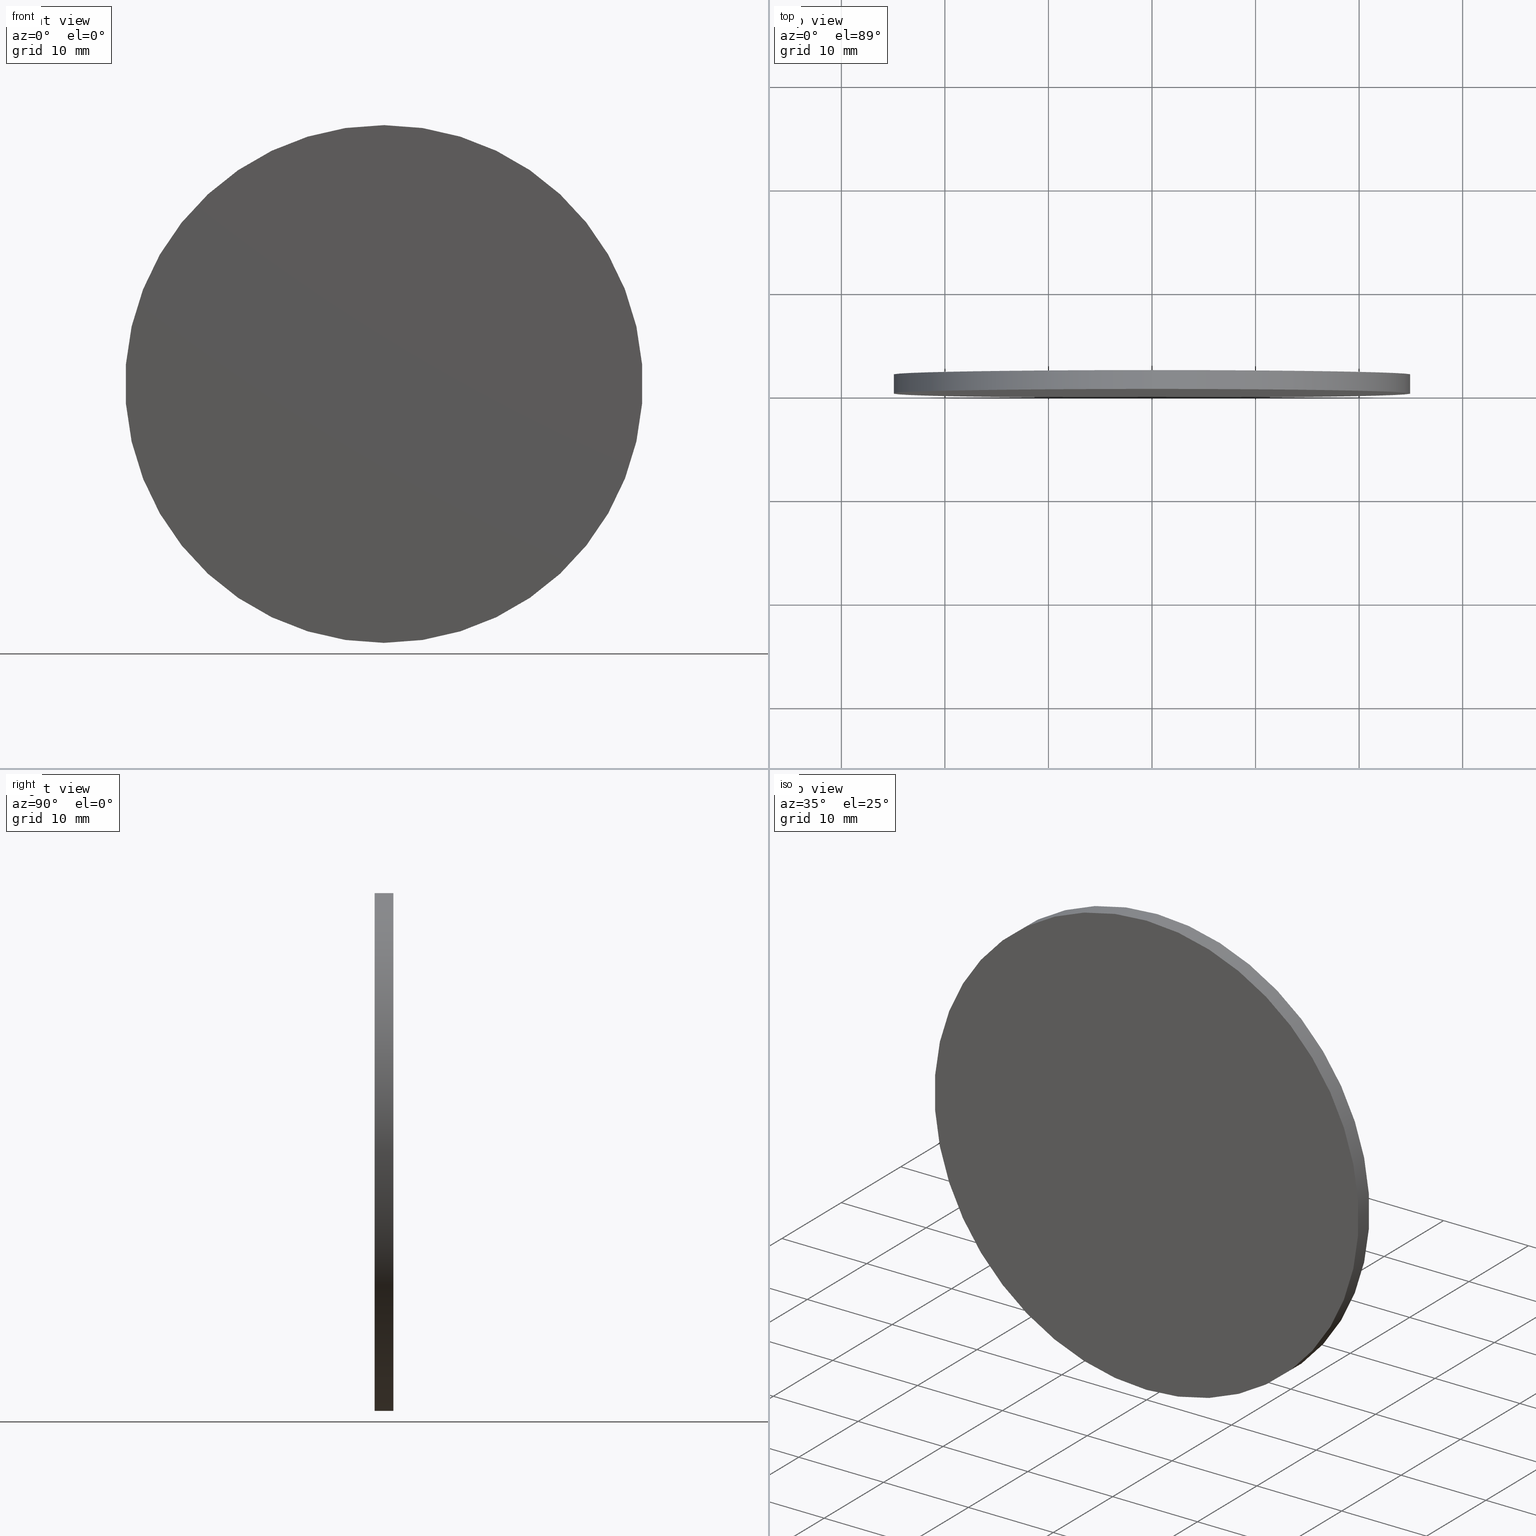
[diagram: canonical four-view strip — front | top / right | iso, engineering-drawing reading convention]
A machine part, canonical four-view strip (front | top / right | iso — engineering-drawing reading convention). The complete STEP part file that produces these views, byte-faithful:
ISO-10303-21;
HEADER;
FILE_DESCRIPTION (( 'STEP AP214' ),
    '1' );
FILE_NAME ('248602.STEP',
    '2019-08-06T05:32:40',
    ( 'user' ),
    ( '΢���й�' ),
    'SwSTEP 2.0',
    'SolidWorks 2016',
    '' );
FILE_SCHEMA (( 'AUTOMOTIVE_DESIGN' ));
ENDSEC;

DATA;
#1 = LINE ( 'NONE', #21, #127 ) ;
#2 = ORIENTED_EDGE ( 'NONE', *, *, #78, .T. ) ;
#3 = MECHANICAL_DESIGN_GEOMETRIC_PRESENTATION_REPRESENTATION (  '', ( #22 ), #9 ) ;
#4 = EDGE_CURVE ( 'NONE', #65, #57, #15, .T. ) ;
#5 = ADVANCED_BREP_SHAPE_REPRESENTATION ( '248602', ( #34, #24 ), #110 ) ;
#6 = AXIS2_PLACEMENT_3D ( 'NONE', #13, #79, #114 ) ;
#7 = EDGE_LOOP ( 'NONE', ( #40, #19, #84, #116 ) ) ;
#8 =( LENGTH_UNIT ( ) NAMED_UNIT ( * ) SI_UNIT ( .MILLI., .METRE. ) );
#9 =( GEOMETRIC_REPRESENTATION_CONTEXT ( 3 ) GLOBAL_UNCERTAINTY_ASSIGNED_CONTEXT ( ( #53 ) ) GLOBAL_UNIT_ASSIGNED_CONTEXT ( ( #8, #119, #82 ) ) REPRESENTATION_CONTEXT ( 'NONE', 'WORKASPACE' ) );
#10 = DIRECTION ( 'NONE',  ( -0.0000000000000000000, -1.000000000000000000, -0.0000000000000000000 ) ) ;
#11 = FILL_AREA_STYLE_COLOUR ( '', #66 ) ;
#12 = CARTESIAN_POINT ( 'NONE',  ( 0.0000000000000000000, 1.820000000000000100, 0.0000000000000000000 ) ) ;
#13 = CARTESIAN_POINT ( 'NONE',  ( 0.0000000000000000000, 1.820000000000000100, 0.0000000000000000000 ) ) ;
#14 = DIRECTION ( 'NONE',  ( -0.0000000000000000000, -1.000000000000000000, -0.0000000000000000000 ) ) ;
#15 = LINE ( 'NONE', #71, #88 ) ;
#16 = PRESENTATION_LAYER_ASSIGNMENT (  '', '', ( #22 ) ) ;
#17 = EDGE_LOOP ( 'NONE', ( #39, #29, #43, #133 ) ) ;
#18 = DIRECTION ( 'NONE',  ( 0.0000000000000000000, 1.000000000000000000, 0.0000000000000000000 ) ) ;
#19 = ORIENTED_EDGE ( 'NONE', *, *, #129, .F. ) ;
#20 = AXIS2_PLACEMENT_3D ( 'NONE', #45, #44, #54 ) ;
#21 = CARTESIAN_POINT ( 'NONE',  ( 3.061616997868383000E-015, 1.820000000000000100, 25.00000000000000000 ) ) ;
#22 = STYLED_ITEM ( 'NONE', ( #117 ), #5 ) ;
#23 = PRODUCT_RELATED_PRODUCT_CATEGORY ( 'part', '', ( #80 ) ) ;
#24 = AXIS2_PLACEMENT_3D ( 'NONE', #91, #28, #31 ) ;
#25 = EDGE_LOOP ( 'NONE', ( #112, #56 ) ) ;
#26 = AXIS2_PLACEMENT_3D ( 'NONE', #137, #97, #86 ) ;
#27 = CARTESIAN_POINT ( 'NONE',  ( 0.0000000000000000000, 0.0000000000000000000, 0.0000000000000000000 ) ) ;
#28 = DIRECTION ( 'NONE',  ( 0.0000000000000000000, 0.0000000000000000000, 1.000000000000000000 ) ) ;
#29 = ORIENTED_EDGE ( 'NONE', *, *, #101, .T. ) ;
#30 = ADVANCED_FACE ( 'NONE', ( #70 ), #122, .T. ) ;
#31 = DIRECTION ( 'NONE',  ( 1.000000000000000000, 0.0000000000000000000, 0.0000000000000000000 ) ) ;
#32 = DIRECTION ( 'NONE',  ( 0.0000000000000000000, 1.000000000000000000, 0.0000000000000000000 ) ) ;
#33 = CYLINDRICAL_SURFACE ( 'NONE', #96, 25.00000000000000000 ) ;
#34 = MANIFOLD_SOLID_BREP ( '͹̨-����1', #98 ) ;
#35 = FACE_OUTER_BOUND ( 'NONE', #7, .T. ) ;
#36 = PRODUCT_DEFINITION ( 'δ֪', '', #99, #94 ) ;
#37 = DIRECTION ( 'NONE',  ( 0.0000000000000000000, 0.0000000000000000000, -1.000000000000000000 ) ) ;
#38 = AXIS2_PLACEMENT_3D ( 'NONE', #93, #74, #92 ) ;
#39 = ORIENTED_EDGE ( 'NONE', *, *, #78, .F. ) ;
#40 = ORIENTED_EDGE ( 'NONE', *, *, #101, .F. ) ;
#41 = SURFACE_STYLE_USAGE ( .BOTH. , #107 ) ;
#42 = STYLED_ITEM ( 'NONE', ( #73 ), #34 ) ;
#43 = ORIENTED_EDGE ( 'NONE', *, *, #68, .T. ) ;
#44 = DIRECTION ( 'NONE',  ( 0.0000000000000000000, 1.000000000000000000, 0.0000000000000000000 ) ) ;
#45 = CARTESIAN_POINT ( 'NONE',  ( 0.0000000000000000000, 1.820000000000000100, 0.0000000000000000000 ) ) ;
#46 = SHAPE_DEFINITION_REPRESENTATION ( #120, #5 ) ;
#47 = PRODUCT_CONTEXT ( 'NONE', #113, 'mechanical' ) ;
#48 = FILL_AREA_STYLE ('',( #61 ) ) ;
#49 = FACE_OUTER_BOUND ( 'NONE', #83, .T. ) ;
#50 = FACE_OUTER_BOUND ( 'NONE', #25, .T. ) ;
#51 = CARTESIAN_POINT ( 'NONE',  ( 3.061616997868383000E-015, 1.820000000000000100, 25.00000000000000000 ) ) ;
#52 = DIRECTION ( 'NONE',  ( -0.0000000000000000000, -1.000000000000000000, -0.0000000000000000000 ) ) ;
#53 = UNCERTAINTY_MEASURE_WITH_UNIT (LENGTH_MEASURE( 1.000000000000000100E-005 ), #8, 'distance_accuracy_value', 'NONE');
#54 = DIRECTION ( 'NONE',  ( 0.0000000000000000000, 0.0000000000000000000, 1.000000000000000000 ) ) ;
#55 =( GEOMETRIC_REPRESENTATION_CONTEXT ( 3 ) GLOBAL_UNCERTAINTY_ASSIGNED_CONTEXT ( ( #62 ) ) GLOBAL_UNIT_ASSIGNED_CONTEXT ( ( #75, #125, #106 ) ) REPRESENTATION_CONTEXT ( 'NONE', 'WORKASPACE' ) );
#56 = ORIENTED_EDGE ( 'NONE', *, *, #68, .F. ) ;
#57 = VERTEX_POINT ( 'NONE', #72 ) ;
#58 = SURFACE_STYLE_FILL_AREA ( #118 ) ;
#59 = CARTESIAN_POINT ( 'NONE',  ( 0.0000000000000000000, 1.820000000000000100, 0.0000000000000000000 ) ) ;
#60 = DIRECTION ( 'NONE',  ( -0.0000000000000000000, -1.000000000000000000, -0.0000000000000000000 ) ) ;
#61 = FILL_AREA_STYLE_COLOUR ( '', #105 ) ;
#62 = UNCERTAINTY_MEASURE_WITH_UNIT (LENGTH_MEASURE( 1.000000000000000100E-005 ), #75, 'distance_accuracy_value', 'NONE');
#63 = CARTESIAN_POINT ( 'NONE',  ( 0.0000000000000000000, 0.0000000000000000000, 0.0000000000000000000 ) ) ;
#64 = CARTESIAN_POINT ( 'NONE',  ( 3.061616997868383000E-015, 0.0000000000000000000, 25.00000000000000000 ) ) ;
#65 = VERTEX_POINT ( 'NONE', #131 ) ;
#66 = COLOUR_RGB ( '',1.000000000000000000, 1.000000000000000000, 1.000000000000000000 ) ;
#67 = AXIS2_PLACEMENT_3D ( 'NONE', #63, #18, #81 ) ;
#68 = EDGE_CURVE ( 'NONE', #128, #57, #136, .T. ) ;
#69 = EDGE_CURVE ( 'NONE', #57, #128, #87, .T. ) ;
#70 = FACE_OUTER_BOUND ( 'NONE', #17, .T. ) ;
#71 = CARTESIAN_POINT ( 'NONE',  ( 0.0000000000000000000, 1.820000000000000100, -25.00000000000000000 ) ) ;
#72 = CARTESIAN_POINT ( 'NONE',  ( 0.0000000000000000000, 0.0000000000000000000, -25.00000000000000000 ) ) ;
#73 = PRESENTATION_STYLE_ASSIGNMENT (( #41 ) ) ;
#74 = DIRECTION ( 'NONE',  ( 0.0000000000000000000, 1.000000000000000000, 0.0000000000000000000 ) ) ;
#75 =( LENGTH_UNIT ( ) NAMED_UNIT ( * ) SI_UNIT ( .MILLI., .METRE. ) );
#76 = ADVANCED_FACE ( 'NONE', ( #49 ), #111, .T. ) ;
#77 = PLANE ( 'NONE',  #67 ) ;
#78 = EDGE_CURVE ( 'NONE', #135, #65, #104, .T. ) ;
#79 = DIRECTION ( 'NONE',  ( 0.0000000000000000000, 1.000000000000000000, 0.0000000000000000000 ) ) ;
#80 = PRODUCT ( '248602', '248602', '', ( #47 ) ) ;
#81 = DIRECTION ( 'NONE',  ( 0.0000000000000000000, -0.0000000000000000000, 1.000000000000000000 ) ) ;
#82 =( NAMED_UNIT ( * ) SI_UNIT ( $, .STERADIAN. ) SOLID_ANGLE_UNIT ( ) );
#83 = EDGE_LOOP ( 'NONE', ( #109, #2 ) ) ;
#84 = ORIENTED_EDGE ( 'NONE', *, *, #4, .T. ) ;
#85 =( LENGTH_UNIT ( ) NAMED_UNIT ( * ) SI_UNIT ( .MILLI., .METRE. ) );
#86 = DIRECTION ( 'NONE',  ( 0.0000000000000000000, 0.0000000000000000000, 1.000000000000000000 ) ) ;
#87 = CIRCLE ( 'NONE', #89, 25.00000000000000000 ) ;
#88 = VECTOR ( 'NONE', #52, 1000.000000000000000 ) ;
#89 = AXIS2_PLACEMENT_3D ( 'NONE', #27, #32, #100 ) ;
#90 = CIRCLE ( 'NONE', #38, 25.00000000000000000 ) ;
#91 = CARTESIAN_POINT ( 'NONE',  ( 0.0000000000000000000, 0.0000000000000000000, 0.0000000000000000000 ) ) ;
#92 = DIRECTION ( 'NONE',  ( 0.0000000000000000000, 0.0000000000000000000, 1.000000000000000000 ) ) ;
#93 = CARTESIAN_POINT ( 'NONE',  ( 0.0000000000000000000, 1.820000000000000100, 0.0000000000000000000 ) ) ;
#94 = PRODUCT_DEFINITION_CONTEXT ( 'detailed design', #130, 'design' ) ;
#95 = APPLICATION_PROTOCOL_DEFINITION ( 'draft international standard', 'automotive_design', 1998, #130 ) ;
#96 = AXIS2_PLACEMENT_3D ( 'NONE', #59, #60, #140 ) ;
#97 = DIRECTION ( 'NONE',  ( 0.0000000000000000000, 1.000000000000000000, 0.0000000000000000000 ) ) ;
#98 = CLOSED_SHELL ( 'NONE', ( #30, #115, #76, #123 ) ) ;
#99 = PRODUCT_DEFINITION_FORMATION_WITH_SPECIFIED_SOURCE ( '�κ�', '', #80, .NOT_KNOWN. ) ;
#100 = DIRECTION ( 'NONE',  ( 0.0000000000000000000, 0.0000000000000000000, 1.000000000000000000 ) ) ;
#101 = EDGE_CURVE ( 'NONE', #135, #128, #1, .T. ) ;
#102 =( NAMED_UNIT ( * ) PLANE_ANGLE_UNIT ( ) SI_UNIT ( $, .RADIAN. ) );
#103 =( NAMED_UNIT ( * ) SI_UNIT ( $, .STERADIAN. ) SOLID_ANGLE_UNIT ( ) );
#104 = CIRCLE ( 'NONE', #20, 25.00000000000000000 ) ;
#105 = COLOUR_RGB ( '',1.000000000000000000, 1.000000000000000000, 1.000000000000000000 ) ;
#106 =( NAMED_UNIT ( * ) SI_UNIT ( $, .STERADIAN. ) SOLID_ANGLE_UNIT ( ) );
#107 = SURFACE_SIDE_STYLE ('',( #139 ) ) ;
#108 = PRESENTATION_LAYER_ASSIGNMENT (  '', '', ( #42 ) ) ;
#109 = ORIENTED_EDGE ( 'NONE', *, *, #129, .T. ) ;
#110 =( GEOMETRIC_REPRESENTATION_CONTEXT ( 3 ) GLOBAL_UNCERTAINTY_ASSIGNED_CONTEXT ( ( #121 ) ) GLOBAL_UNIT_ASSIGNED_CONTEXT ( ( #85, #102, #103 ) ) REPRESENTATION_CONTEXT ( 'NONE', 'WORKASPACE' ) );
#111 = PLANE ( 'NONE',  #6 ) ;
#112 = ORIENTED_EDGE ( 'NONE', *, *, #69, .F. ) ;
#113 = APPLICATION_CONTEXT ( 'automotive_design' ) ;
#114 = DIRECTION ( 'NONE',  ( 0.0000000000000000000, -0.0000000000000000000, 1.000000000000000000 ) ) ;
#115 = ADVANCED_FACE ( 'NONE', ( #35 ), #33, .T. ) ;
#116 = ORIENTED_EDGE ( 'NONE', *, *, #69, .T. ) ;
#117 = PRESENTATION_STYLE_ASSIGNMENT (( #126 ) ) ;
#118 = FILL_AREA_STYLE ('',( #11 ) ) ;
#119 =( NAMED_UNIT ( * ) PLANE_ANGLE_UNIT ( ) SI_UNIT ( $, .RADIAN. ) );
#120 = PRODUCT_DEFINITION_SHAPE ( 'NONE', 'NONE',  #36 ) ;
#121 = UNCERTAINTY_MEASURE_WITH_UNIT (LENGTH_MEASURE( 1.000000000000000100E-005 ), #85, 'distance_accuracy_value', 'NONE');
#122 = CYLINDRICAL_SURFACE ( 'NONE', #134, 25.00000000000000000 ) ;
#123 = ADVANCED_FACE ( 'NONE', ( #50 ), #77, .F. ) ;
#124 = MECHANICAL_DESIGN_GEOMETRIC_PRESENTATION_REPRESENTATION (  '', ( #42 ), #55 ) ;
#125 =( NAMED_UNIT ( * ) PLANE_ANGLE_UNIT ( ) SI_UNIT ( $, .RADIAN. ) );
#126 = SURFACE_STYLE_USAGE ( .BOTH. , #132 ) ;
#127 = VECTOR ( 'NONE', #10, 1000.000000000000000 ) ;
#128 = VERTEX_POINT ( 'NONE', #64 ) ;
#129 = EDGE_CURVE ( 'NONE', #65, #135, #90, .T. ) ;
#130 = APPLICATION_CONTEXT ( 'automotive_design' ) ;
#131 = CARTESIAN_POINT ( 'NONE',  ( 0.0000000000000000000, 1.820000000000000100, -25.00000000000000000 ) ) ;
#132 = SURFACE_SIDE_STYLE ('',( #58 ) ) ;
#133 = ORIENTED_EDGE ( 'NONE', *, *, #4, .F. ) ;
#134 = AXIS2_PLACEMENT_3D ( 'NONE', #12, #14, #37 ) ;
#135 = VERTEX_POINT ( 'NONE', #51 ) ;
#136 = CIRCLE ( 'NONE', #26, 25.00000000000000000 ) ;
#137 = CARTESIAN_POINT ( 'NONE',  ( 0.0000000000000000000, 0.0000000000000000000, 0.0000000000000000000 ) ) ;
#138 = APPLICATION_PROTOCOL_DEFINITION ( 'draft international standard', 'automotive_design', 1998, #113 ) ;
#139 = SURFACE_STYLE_FILL_AREA ( #48 ) ;
#140 = DIRECTION ( 'NONE',  ( 0.0000000000000000000, 0.0000000000000000000, -1.000000000000000000 ) ) ;
ENDSEC;
END-ISO-10303-21;
